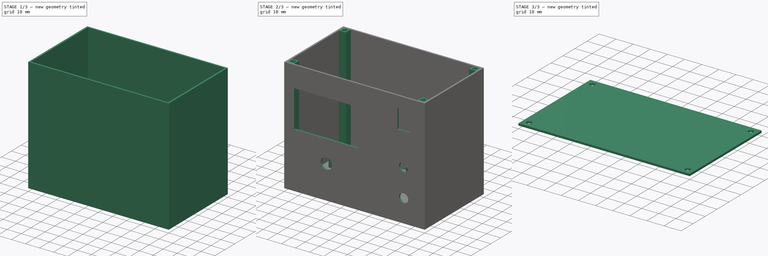
[diagram: build sequence overview — one tinted view per stage of 3, left to right]
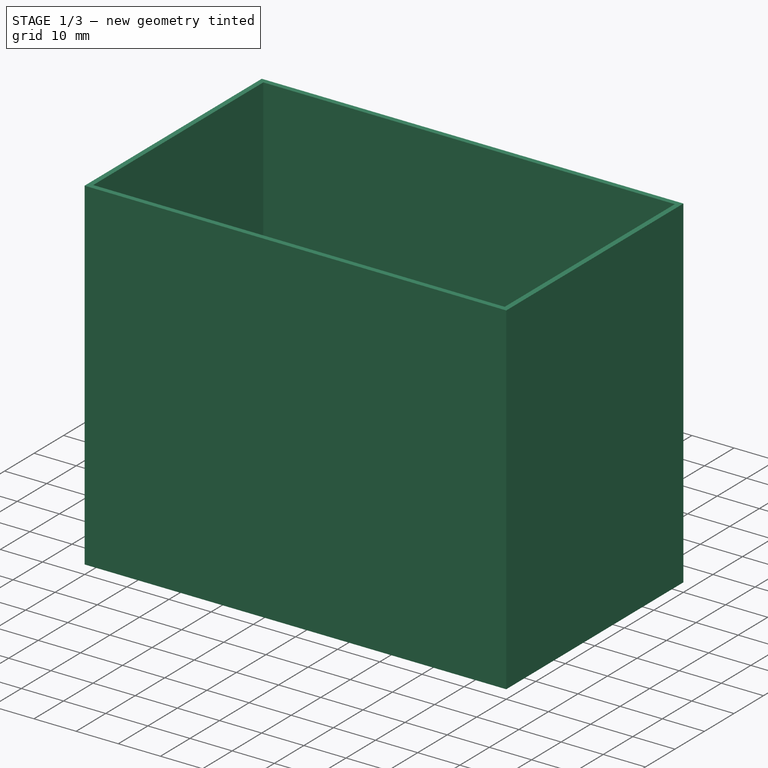
[diagram: stage 1 of 3 — iso view after this stage's code; geometry added in this stage tinted green]
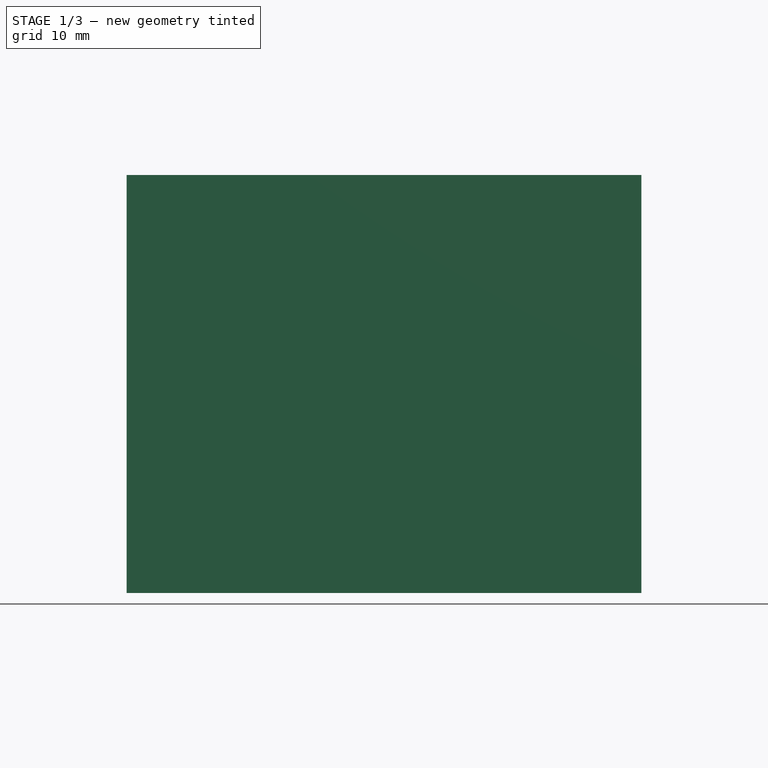
[diagram: stage 1 of 3 — front view after this stage's code; geometry added in this stage tinted green]
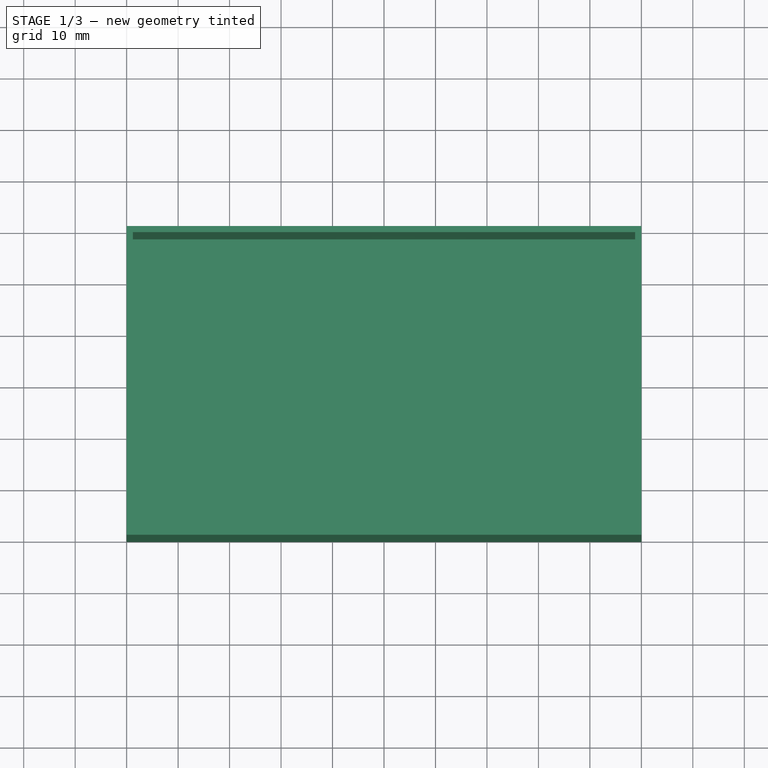
[diagram: stage 1 of 3 — top view after this stage's code; geometry added in this stage tinted green]
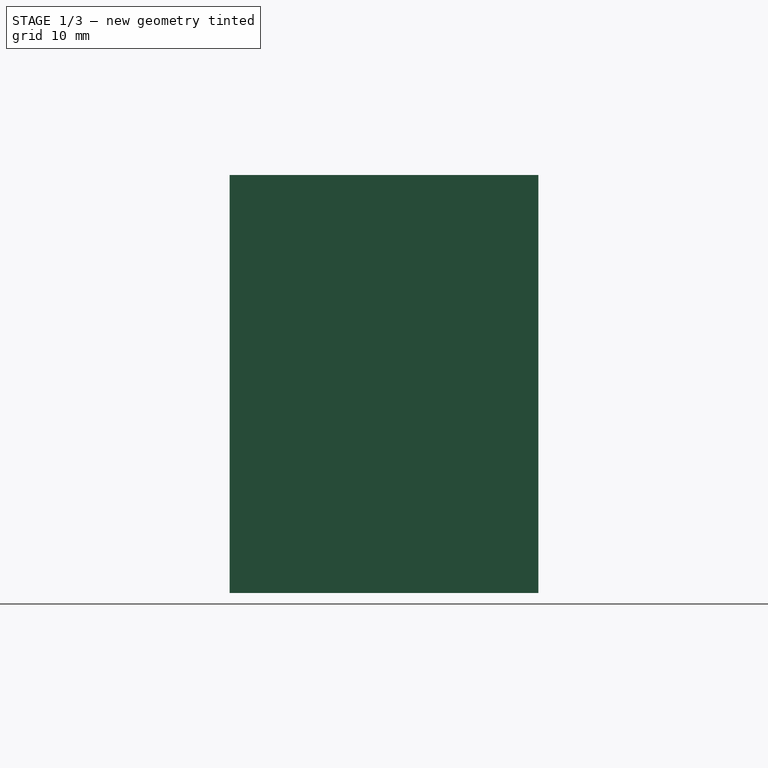
[diagram: stage 1 of 3 — right view after this stage's code; geometry added in this stage tinted green]
FCSTD DOCUMENT  (FreeCAD 0.18R16131 (Git))
Label: Box
License: CreativeCommons Attribution-NonCommercial-NoDerivatives
LicenseURL: http://creativecommons.org/licenses/by-nc-nd/4.0/
objects: Sketcher::SketchObject×9, PartDesign::Pad×5, PartDesign::Pocket×2, PartDesign::Body×2, PartDesign::ShapeBinder×1
note: 26 computed .brp shape members not serialized (recipe doc carries the construction recipe); baked Part::Feature solids carry a one-line shape summary decoded from their .brp

FEATURE [Sketcher::SketchObject] Sketch
  MapMode = 5
  Support = -> [XY_Plane]
  sketch-geometry (4):
    g0: LineSegment StartX=0 StartY=0 StartZ=0 EndX=100 EndY=0 EndZ=0
    g1: LineSegment StartX=100 StartY=0 StartZ=0 EndX=100 EndY=60 EndZ=0
    g2: LineSegment StartX=100 StartY=60 StartZ=0 EndX=0 EndY=60 EndZ=0
    g3: LineSegment StartX=0 StartY=60 StartZ=0 EndX=0 EndY=0 EndZ=0
  constraints (11):
    c: Coincident(g0,g1)
    c: Coincident(g1,g2)
    c: Coincident(g2,g3)
    c: Coincident(g3,g0)
    c: Horizontal(g0)
    c: Horizontal(g2)
    c: Vertical(g1)
    c: Vertical(g3)
    c: Coincident(g0,g-1)
    c: DistanceX(g2,g2) = 100
    c: DistanceY(g3,g3) = 60
FEATURE [PartDesign::Pad] Pad
  Length = 1.2
  Length2 = 100
  Profile = -> Sketch
  Type = 0
FEATURE [Sketcher::SketchObject] Sketch001
  ExternalGeometry = -> [Pad]
  MapMode = 5
  Placement = pos=(0,0,1.2) rot=(0,0,1;0rad)
  Support = -> [Pad]
  sketch-geometry (8):
    g0: LineSegment StartX=1.2 StartY=58.8 StartZ=0 EndX=98.8 EndY=58.8 EndZ=0
    g1: LineSegment StartX=98.8 StartY=58.8 StartZ=0 EndX=98.8 EndY=1.2 EndZ=0
    g2: LineSegment StartX=98.8 StartY=1.2 StartZ=0 EndX=1.2 EndY=1.2 EndZ=0
    g3: LineSegment StartX=1.2 StartY=1.2 StartZ=0 EndX=1.2 EndY=58.8 EndZ=0
    g4: LineSegment StartX=0 StartY=60 StartZ=0 EndX=100 EndY=60 EndZ=0
    g5: LineSegment StartX=100 StartY=60 StartZ=0 EndX=100 EndY=0 EndZ=0
    g6: LineSegment StartX=100 StartY=0 StartZ=0 EndX=0 EndY=0 EndZ=0
    g7: LineSegment StartX=0 StartY=0 StartZ=0 EndX=0 EndY=60 EndZ=0
  constraints (22):
    c: Coincident(g0,g1)
    c: Coincident(g1,g2)
    c: Coincident(g2,g3)
    c: Coincident(g3,g0)
    c: Horizontal(g0)
    c: Horizontal(g2)
    c: Vertical(g1)
    c: Vertical(g3)
    c: DistanceX(g-3,g0) = 1.2
    c: DistanceX(g1,g-4) = 1.2
    c: DistanceY(g-1,g2) = 1.2
    c: DistanceY(g0,g-3) = 1.2
    c: Coincident(g4,g5)
    c: Coincident(g5,g6)
    c: Coincident(g6,g7)
    c: Coincident(g7,g4)
    c: Horizontal(g4)
    c: Horizontal(g6)
    c: Vertical(g5)
    c: Vertical(g7)
    c: Coincident(g4,g-3)
    c: Coincident(g5,g-4)
FEATURE [PartDesign::Pad] Pad001
  BaseFeature = -> Pad
  Length = 80
  Length2 = 100
  Profile = -> Sketch001
  Type = 0
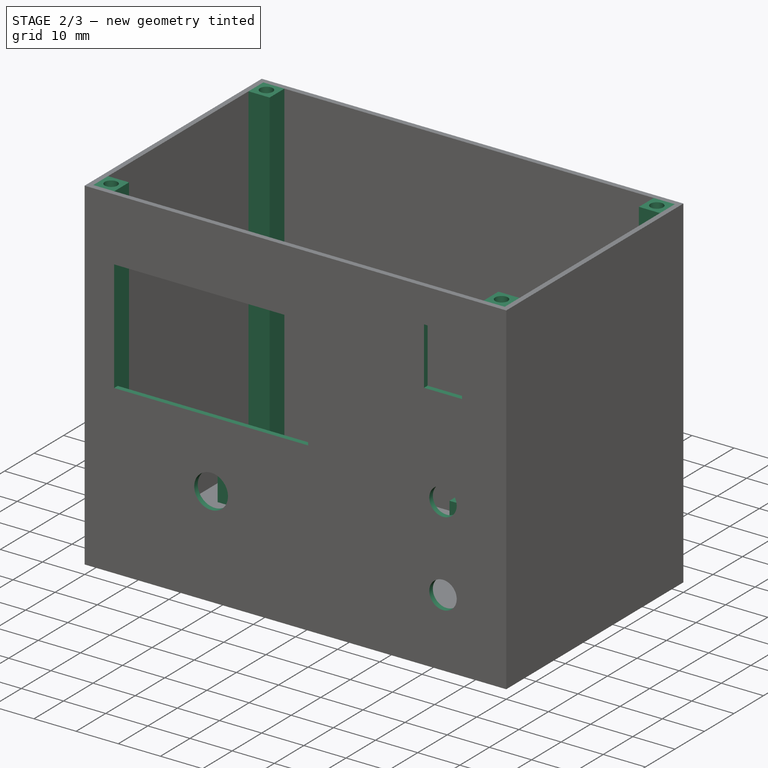
[diagram: stage 2 of 3 — iso view after this stage's code; geometry added in this stage tinted green]
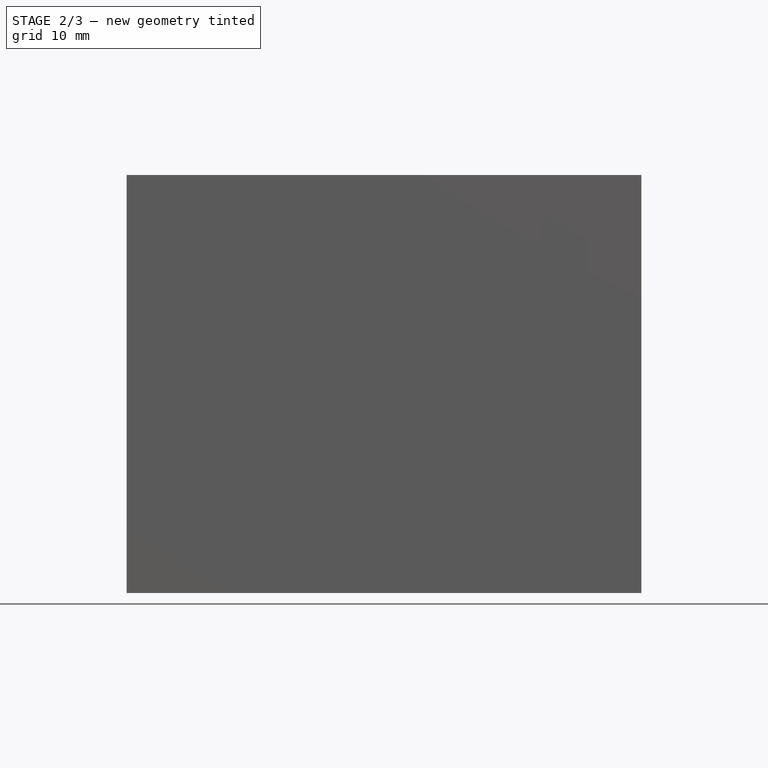
[diagram: stage 2 of 3 — front view after this stage's code; geometry added in this stage tinted green]
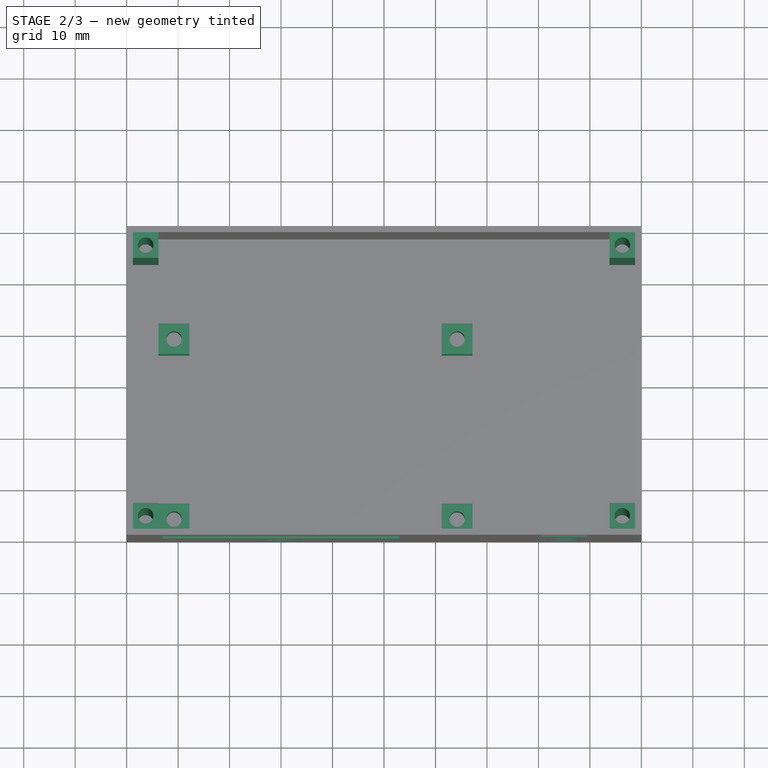
[diagram: stage 2 of 3 — top view after this stage's code; geometry added in this stage tinted green]
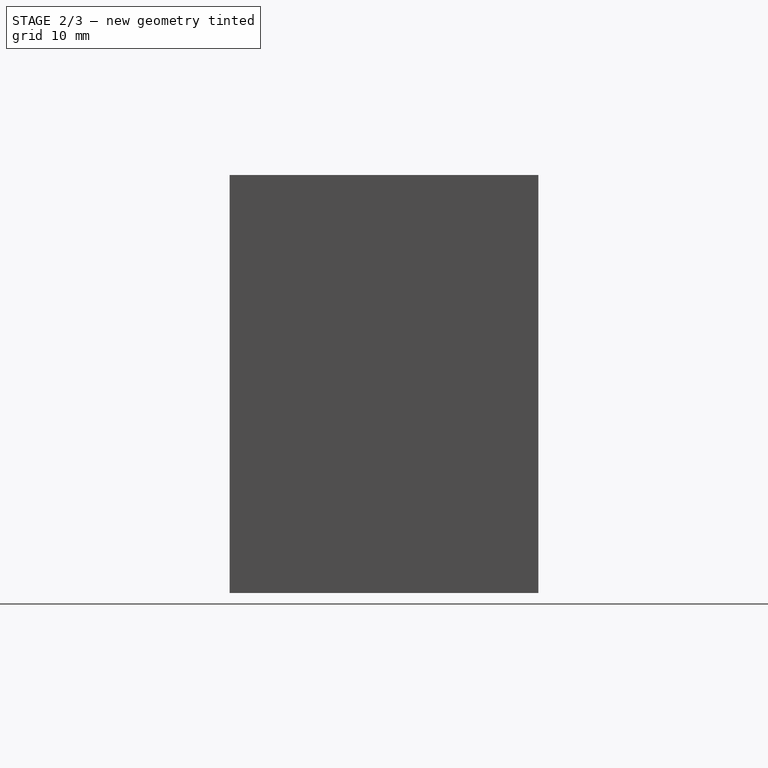
[diagram: stage 2 of 3 — right view after this stage's code; geometry added in this stage tinted green]
FEATURE [Sketcher::SketchObject] Sketch002
  MapMode = 5
  Placement = pos=(0,0,0) rot=(1,0,0;1.5708rad)
  Support = -> [Pad001]
FEATURE [Sketcher::SketchObject] Sketch003
  ExternalGeometry = -> [Pad001]
  MapMode = 5
  Placement = pos=(0,0,1.2) rot=(0,0,1;0rad)
  Support = -> [Pad001]
  sketch-geometry (20):
    g0: LineSegment StartX=1.2 StartY=58.8 StartZ=0 EndX=6.2 EndY=58.8 EndZ=0
    g1: LineSegment StartX=6.2 StartY=58.8 StartZ=0 EndX=6.2 EndY=53.8 EndZ=0
    g2: LineSegment StartX=6.2 StartY=53.8 StartZ=0 EndX=1.2 EndY=53.8 EndZ=0
    g3: LineSegment StartX=1.2 StartY=53.8 StartZ=0 EndX=1.2 EndY=58.8 EndZ=0
    g4: LineSegment StartX=98.8 StartY=58.8 StartZ=0 EndX=93.8 EndY=58.8 EndZ=0
    g5: LineSegment StartX=93.8 StartY=58.8 StartZ=0 EndX=93.8 EndY=53.8 EndZ=0
    g6: LineSegment StartX=93.8 StartY=53.8 StartZ=0 EndX=98.8 EndY=53.8 EndZ=0
    g7: LineSegment StartX=98.8 StartY=53.8 StartZ=0 EndX=98.8 EndY=58.8 EndZ=0
    g8: LineSegment StartX=98.8 StartY=1.2 StartZ=0 EndX=93.8 EndY=1.2 EndZ=0
    g9: LineSegment StartX=93.8 StartY=1.2 StartZ=0 EndX=93.8 EndY=6.2 EndZ=0
    g10: LineSegment StartX=93.8 StartY=6.2 StartZ=0 EndX=98.8 EndY=6.2 EndZ=0
    g11: LineSegment StartX=98.8 StartY=6.2 StartZ=0 EndX=98.8 EndY=1.2 EndZ=0
    g12: LineSegment StartX=1.2 StartY=1.2 StartZ=0 EndX=6.2 EndY=1.2 EndZ=0
    g13: LineSegment StartX=6.2 StartY=1.2 StartZ=0 EndX=6.2 EndY=6.2 EndZ=0
    g14: LineSegment StartX=6.2 StartY=6.2 StartZ=0 EndX=1.2 EndY=6.2 EndZ=0
    g15: LineSegment StartX=1.2 StartY=6.2 StartZ=0 EndX=1.2 EndY=1.2 EndZ=0
    g16: Circle CenterX=3.7 CenterY=56.3 CenterZ=0 NormalX=0 NormalY=0 NormalZ=1 AngleXU=0 Radius=1.5
    g17: Circle CenterX=96.3 CenterY=56.3 CenterZ=0 NormalX=0 NormalY=0 NormalZ=1 AngleXU=0 Radius=1.5
    g18: Circle CenterX=96.3 CenterY=3.7 CenterZ=0 NormalX=0 NormalY=0 NormalZ=1 AngleXU=0 Radius=1.5
    g19: Circle CenterX=3.7 CenterY=3.7 CenterZ=0 NormalX=0 NormalY=0 NormalZ=1 AngleXU=0 Radius=1.5
  constraints (56):
    c: Coincident(g0,g1)
    c: Coincident(g1,g2)
    c: Coincident(g2,g3)
    c: Coincident(g3,g0)
    c: Horizontal(g0)
    c: Horizontal(g2)
    c: Vertical(g1)
    c: Vertical(g3)
    c: Coincident(g0,g-3)
    c: Coincident(g4,g5)
    c: Coincident(g5,g6)
    c: Coincident(g6,g7)
    c: Coincident(g7,g4)
    c: Horizontal(g4)
    c: Horizontal(g6)
    c: Vertical(g5)
    c: Vertical(g7)
    c: Coincident(g4,g-3)
    c: Coincident(g8,g9)
    c: Coincident(g9,g10)
    c: Coincident(g10,g11)
    c: Coincident(g11,g8)
    c: Horizontal(g8)
    c: Horizontal(g10)
    c: Vertical(g9)
    c: Vertical(g11)
    c: Coincident(g8,g-4)
    c: Coincident(g12,g13)
    c: Coincident(g13,g14)
    c: Coincident(g14,g15)
    c: Coincident(g15,g12)
    c: Horizontal(g12)
    c: Horizontal(g14)
    c: Vertical(g13)
    c: Vertical(g15)
    c: Coincident(g12,g-4)
    c: DistanceX(g2,g2) = 5
    c: DistanceY(g3,g3) = 5
    c: Equal(g0,g4)
    c: Equal(g4,g10)
    c: Equal(g10,g14)
    c: Equal(g3,g15)
    c: Equal(g15,g9)
    c: Equal(g9,g5)
    c: Radius(g16) = 1.5
    c: DistanceX(g0,g16) = 2.5
    c: DistanceY(g2,g16) = 2.5
    c: Radius(g17) = 1.5
    c: Radius(g18) = 1.5
    c: Radius(g19) = 1.5
    c: DistanceX(g17,g4) = 2.5
    c: DistanceY(g17,g4) = 2.5
    c: DistanceX(g18,g10) = 2.5
    c: DistanceY(g8,g18) = 2.5
    c: DistanceX(g12,g19) = 2.5
    c: DistanceY(g12,g19) = 2.5
FEATURE [PartDesign::Pad] Pad002
  BaseFeature = -> Pad001
  Length = 80
  Length2 = 100
  Profile = -> Sketch003
  Type = 0
FEATURE [Sketcher::SketchObject] Sketch004
  ExternalGeometry = -> [Pad002]
  MapMode = 5
  Placement = pos=(0,0,1.2) rot=(0,0,1;0rad)
  Support = -> [Pad002]
  sketch-geometry (20):
    g0: LineSegment StartX=6.2 StartY=1.2 StartZ=0 EndX=12.2 EndY=1.2 EndZ=0
    g1: LineSegment StartX=12.2 StartY=1.2 StartZ=0 EndX=12.2 EndY=7.2 EndZ=0
    g2: LineSegment StartX=12.2 StartY=7.2 StartZ=0 EndX=6.2 EndY=7.2 EndZ=0
    g3: LineSegment StartX=6.2 StartY=7.2 StartZ=0 EndX=6.2 EndY=1.2 EndZ=0
    g4: LineSegment StartX=61.2 StartY=7.2 StartZ=0 EndX=67.2 EndY=7.2 EndZ=0
    g5: LineSegment StartX=67.2 StartY=7.2 StartZ=0 EndX=67.2 EndY=1.2 EndZ=0
    g6: LineSegment StartX=67.2 StartY=1.2 StartZ=0 EndX=61.2 EndY=1.2 EndZ=0
    g7: LineSegment StartX=61.2 StartY=1.2 StartZ=0 EndX=61.2 EndY=7.2 EndZ=0
    g8: LineSegment StartX=6.2 StartY=42.2 StartZ=0 EndX=12.2 EndY=42.2 EndZ=0
    g9: LineSegment StartX=12.2 StartY=42.2 StartZ=0 EndX=12.2 EndY=36.2 EndZ=0
    g10: LineSegment StartX=12.2 StartY=36.2 StartZ=0 EndX=6.2 EndY=36.2 EndZ=0
    g11: LineSegment StartX=6.2 StartY=36.2 StartZ=0 EndX=6.2 EndY=42.2 EndZ=0
    g12: LineSegment StartX=61.2 StartY=42.2 StartZ=0 EndX=67.2 EndY=42.2 EndZ=0
    g13: LineSegment StartX=67.2 StartY=42.2 StartZ=0 EndX=67.2 EndY=36.2 EndZ=0
    g14: LineSegment StartX=67.2 StartY=36.2 StartZ=0 EndX=61.2 EndY=36.2 EndZ=0
    g15: LineSegment StartX=61.2 StartY=36.2 StartZ=0 EndX=61.2 EndY=42.2 EndZ=0
    g16: Circle CenterX=9.2 CenterY=39.2 CenterZ=0 NormalX=0 NormalY=0 NormalZ=1 AngleXU=0 Radius=1.5
    g17: Circle CenterX=64.2 CenterY=39.2 CenterZ=0 NormalX=0 NormalY=0 NormalZ=1 AngleXU=0 Radius=1.5
    g18: Circle CenterX=64.2 CenterY=4.2 CenterZ=0 NormalX=0 NormalY=0 NormalZ=1 AngleXU=0 Radius=1.5
    g19: Circle CenterX=9.2 CenterY=4.2 CenterZ=0 NormalX=0 NormalY=0 NormalZ=1 AngleXU=0 Radius=1.5
  constraints (55):
    c: Coincident(g0,g1)
    c: Coincident(g1,g2)
    c: Coincident(g2,g3)
    c: Coincident(g3,g0)
    c: Horizontal(g0)
    c: Horizontal(g2)
    c: Vertical(g1)
    c: Vertical(g3)
    c: Coincident(g0,g-9)
    c: DistanceX(g2,g2) = 6
    c: DistanceY(g1,g1) = 6
    c: Coincident(g4,g5)
    c: Coincident(g5,g6)
    c: Coincident(g6,g7)
    c: Coincident(g7,g4)
    c: Horizontal(g4)
    c: Horizontal(g6)
    c: Vertical(g5)
    c: Vertical(g7)
    c: DistanceX(g0,g5) = 61
    c: Equal(g0,g6)
    c: Equal(g1,g7)
    c: DistanceY(g0,g6) = 0
    c: Coincident(g8,g9)
    c: Coincident(g9,g10)
    c: Coincident(g10,g11)
    c: Coincident(g11,g8)
    c: Horizontal(g8)
    c: Horizontal(g10)
    c: Vertical(g9)
    c: Vertical(g11)
    c: Equal(g2,g10)
    c: Equal(g1,g9)
    c: DistanceX(g10,g2) = 0
    c: DistanceY(g0,g8) = 41
    c: Coincident(g12,g13)
    c: Coincident(g13,g14)
    c: Coincident(g14,g15)
    c: Coincident(g15,g12)
    c: Horizontal(g12)
    c: Horizontal(g14)
    c: Vertical(g13)
    c: Vertical(g15)
    c: Equal(g1,g15)
    c: Equal(g0,g14)
    c: DistanceY(g5,g12) = 41
    c: DistanceX(g8,g12) = 61
    c: Radius(g16) = 1.5
    c: Equal(g16,g17)
    c: Equal(g16,g19)
    c: Equal(g16,g18)
    c: Symmetric(g8,g9,g16)
    c: Symmetric(g14,g12,g17)
    c: Symmetric(g4,g5,g18)
    c: Symmetric(g2,g0,g19)
FEATURE [PartDesign::Pad] Pad003
  BaseFeature = -> Pad002
  Length = 15
  Length2 = 100
  Profile = -> Sketch004
  Type = 0
FEATURE [Sketcher::SketchObject] Sketch005
  ExternalGeometry = -> [Pad003]
  MapMode = 5
  Placement = pos=(0,0,0) rot=(1,0,0;1.5708rad)
  Support = -> [Pad003]
  sketch-geometry (11):
    g0: Circle CenterX=30 CenterY=23.7 CenterZ=0 NormalX=0 NormalY=0 NormalZ=1 AngleXU=0 Radius=4
    g1: LineSegment StartX=7 StartY=39.7 StartZ=0 EndX=53 EndY=39.7 EndZ=0
    g2: LineSegment StartX=53 StartY=39.7 StartZ=0 EndX=53 EndY=66.2 EndZ=0
    g3: LineSegment StartX=53 StartY=66.2 StartZ=0 EndX=7 EndY=66.2 EndZ=0
    g4: LineSegment StartX=7 StartY=66.2 StartZ=0 EndX=7 EndY=39.7 EndZ=0
    g5: Circle CenterX=85 CenterY=16.2 CenterZ=0 NormalX=0 NormalY=0 NormalZ=1 AngleXU=0 Radius=3.25
    g6: Circle CenterX=85 CenterY=36.2 CenterZ=0 NormalX=0 NormalY=0 NormalZ=1 AngleXU=0 Radius=3.25
    g7: LineSegment StartX=80.5 StartY=73 StartZ=0 EndX=89.5 EndY=73 EndZ=0
    g8: LineSegment StartX=89.5 StartY=73 StartZ=0 EndX=89.5 EndY=59.4 EndZ=0
    g9: LineSegment StartX=89.5 StartY=59.4 StartZ=0 EndX=80.5 EndY=59.4 EndZ=0
    g10: LineSegment StartX=80.5 StartY=59.4 StartZ=0 EndX=80.5 EndY=73 EndZ=0
  constraints (33):
    c: Radius(g0) = 4
    c: DistanceX(g-5,g0) = 30
    c: DistanceY(g-5,g0) = 22.5
    c: Coincident(g1,g2)
    c: Coincident(g2,g3)
    c: Coincident(g3,g4)
    c: Coincident(g4,g1)
    c: Horizontal(g1)
    c: Horizontal(g3)
    c: Vertical(g2)
    c: Vertical(g4)
    c: DistanceX(g3,g3) = 46
    c: DistanceY(g4,g4) = 26.5
    c: DistanceX(g1,g0) = 23
    c: DistanceY(g0,g1) = 16
    c: Radius(g5) = 3.25
    c: Equal(g5,g6)
    c: DistanceX(g5,g-5) = 15
    c: DistanceX(g6,g-5) = 15
    c: DistanceY(g-5,g5) = 15
    c: DistanceY(g5,g6) = 20
    c: Coincident(g7,g8)
    c: Coincident(g8,g9)
    c: Coincident(g9,g10)
    c: Coincident(g10,g7)
    c: Horizontal(g7)
    c: Horizontal(g9)
    c: Vertical(g8)
    c: Vertical(g10)
    c: DistanceX(g7,g7) = 9
    c: DistanceY(g10,g10) = 13.6
    c: DistanceX(g7,g-4) = 10.5
    c: DistanceY(g9,g2) = 6.8
FEATURE [PartDesign::Pocket] Pocket
  BaseFeature = -> Pad003
  Length = 5
  Length2 = 100
  Profile = -> Sketch005
  Type = 0
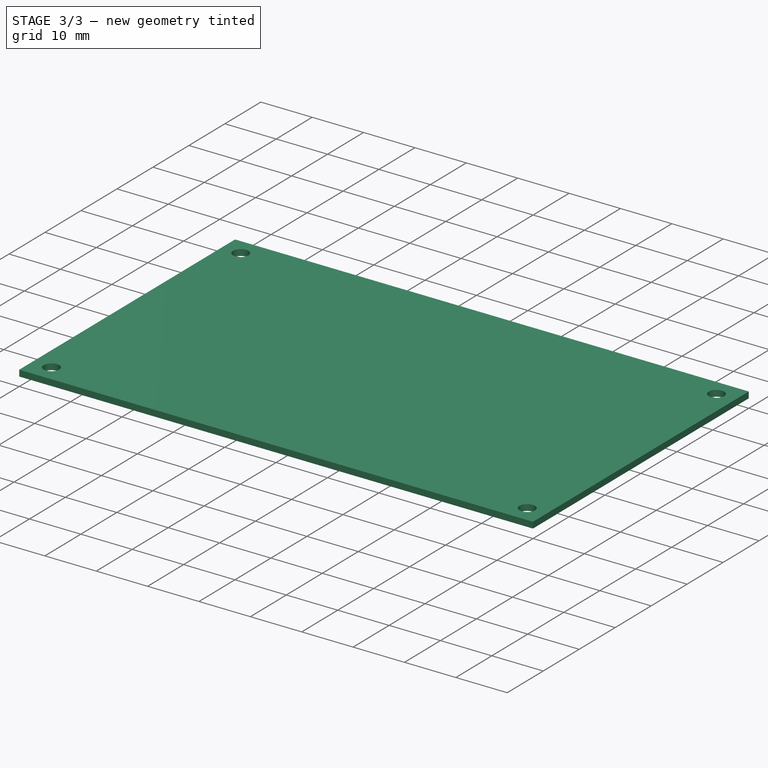
[diagram: stage 3 of 3 — iso view after this stage's code; geometry added in this stage tinted green]
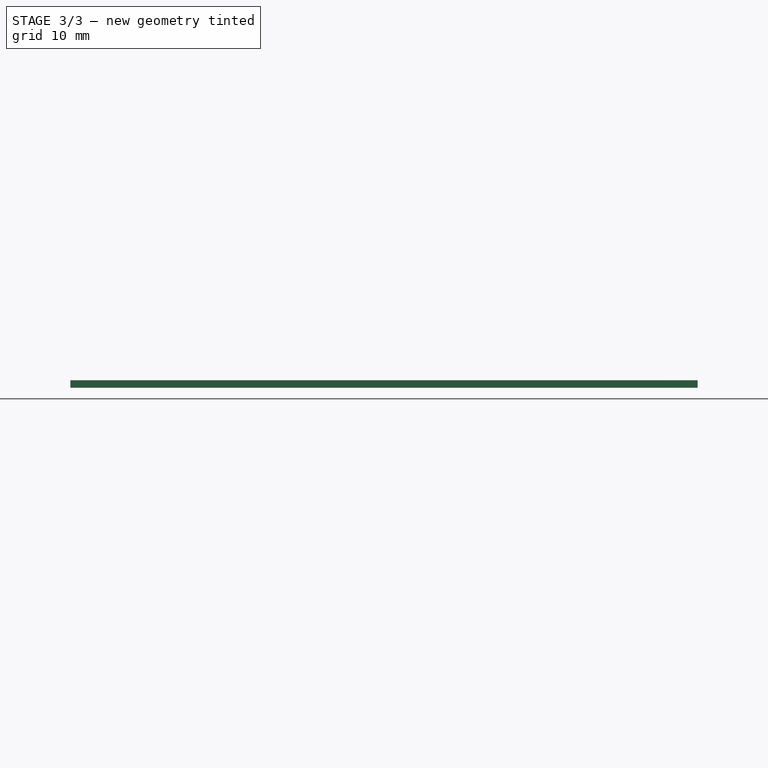
[diagram: stage 3 of 3 — front view after this stage's code; geometry added in this stage tinted green]
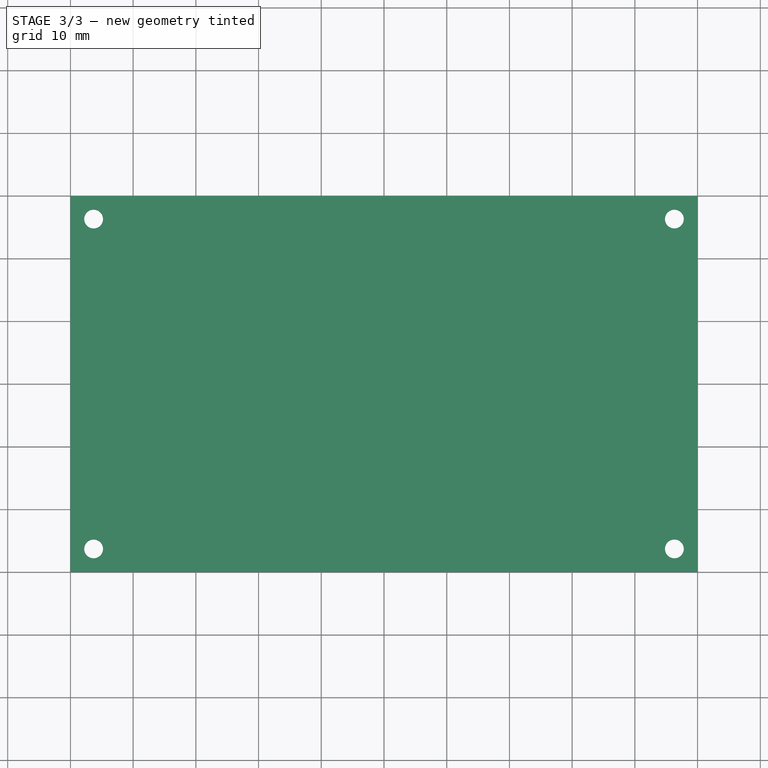
[diagram: stage 3 of 3 — top view after this stage's code; geometry added in this stage tinted green]
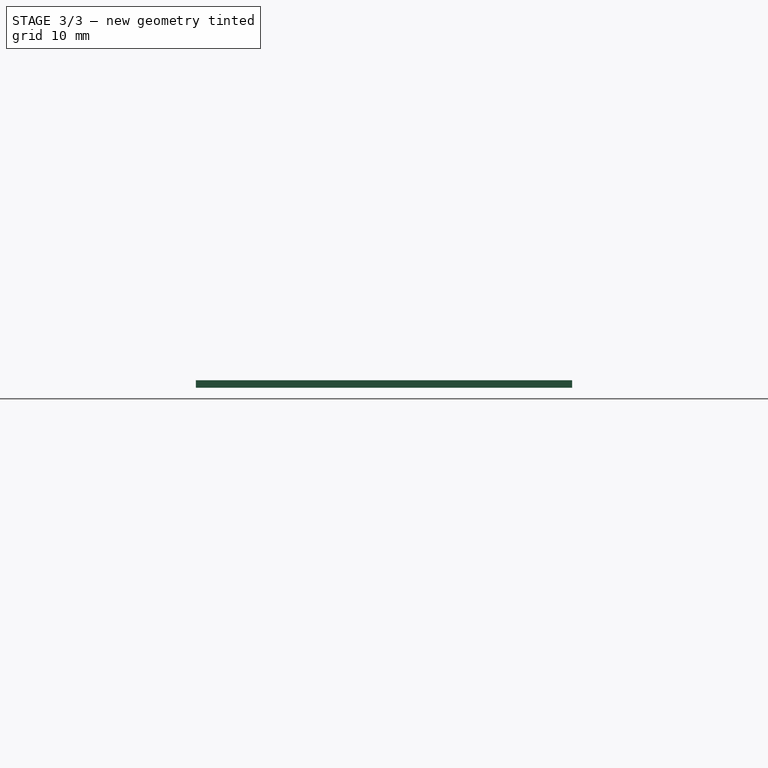
[diagram: stage 3 of 3 — right view after this stage's code; geometry added in this stage tinted green]
FEATURE [Sketcher::SketchObject] Sketch006
  MapMode = 5
  Placement = pos=(0,60,0) rot=(0,0.707107,0.707107;3.14159rad)
  Support = -> [Pocket]
FEATURE [Sketcher::SketchObject] Sketch007
  ExternalGeometry = -> [Pocket]
  MapMode = 5
  Placement = pos=(0,60,0) rot=(0,0.707107,0.707107;3.14159rad)
  Support = -> [Pocket]
  sketch-geometry (29):
    g0: Circle CenterX=-82 CenterY=16.2 CenterZ=0 NormalX=0 NormalY=0 NormalZ=1 AngleXU=0 Radius=6.25
    g1: LineSegment StartX=-5 StartY=16.2 StartZ=0 EndX=-10 EndY=16.2 EndZ=0
    g2: LineSegment StartX=-10 StartY=16.2 StartZ=0 EndX=-10 EndY=76.2 EndZ=0
    g3: LineSegment StartX=-10 StartY=76.2 StartZ=0 EndX=-5 EndY=76.2 EndZ=0
    g4: LineSegment StartX=-5 StartY=76.2 StartZ=0 EndX=-5 EndY=16.2 EndZ=0
    g5: LineSegment StartX=-15 StartY=76.2 StartZ=0 EndX=-20 EndY=76.2 EndZ=0
    g6: LineSegment StartX=-20 StartY=76.2 StartZ=0 EndX=-20 EndY=16.2 EndZ=0
    g7: LineSegment StartX=-20 StartY=16.2 StartZ=0 EndX=-15 EndY=16.2 EndZ=0
    g8: LineSegment StartX=-15 StartY=16.2 StartZ=0 EndX=-15 EndY=76.2 EndZ=0
    g9: LineSegment StartX=-30 StartY=76.2 StartZ=0 EndX=-25 EndY=76.2 EndZ=0
    g10: LineSegment StartX=-25 StartY=76.2 StartZ=0 EndX=-25 EndY=16.1778 EndZ=0
    g11: LineSegment StartX=-25 StartY=16.1778 StartZ=0 EndX=-30 EndY=16.1778 EndZ=0
    g12: LineSegment StartX=-30 StartY=16.1778 StartZ=0 EndX=-30 EndY=76.2 EndZ=0
    g13: LineSegment StartX=-40 StartY=76.2 StartZ=0 EndX=-35 EndY=76.2 EndZ=0
    g14: LineSegment StartX=-35 StartY=76.2 StartZ=0 EndX=-35 EndY=16.1778 EndZ=0
    g15: LineSegment StartX=-35 StartY=16.1778 StartZ=0 EndX=-40 EndY=16.1778 EndZ=0
    g16: LineSegment StartX=-40 StartY=16.1778 StartZ=0 EndX=-40 EndY=76.2 EndZ=0
    g17: LineSegment StartX=-50 StartY=76.2 StartZ=0 EndX=-45 EndY=76.2 EndZ=0
    g18: LineSegment StartX=-45 StartY=76.2 StartZ=0 EndX=-45 EndY=16.1778 EndZ=0
    g19: LineSegment StartX=-45 StartY=16.1778 StartZ=0 EndX=-50 EndY=16.1778 EndZ=0
    g20: LineSegment StartX=-50 StartY=16.1778 StartZ=0 EndX=-50 EndY=76.2 EndZ=0
    g21: LineSegment StartX=-60 StartY=76.2 StartZ=0 EndX=-55 EndY=76.2 EndZ=0
    g22: LineSegment StartX=-55 StartY=76.2 StartZ=0 EndX=-55 EndY=16.1778 EndZ=0
    g23: LineSegment StartX=-55 StartY=16.1778 StartZ=0 EndX=-60 EndY=16.1778 EndZ=0
    g24: LineSegment StartX=-60 StartY=16.1778 StartZ=0 EndX=-60 EndY=76.2 EndZ=0
    g25: LineSegment StartX=-70 StartY=76.2 StartZ=0 EndX=-65 EndY=76.2 EndZ=0
    g26: LineSegment StartX=-65 StartY=76.2 StartZ=0 EndX=-65 EndY=16.1778 EndZ=0
    g27: LineSegment StartX=-65 StartY=16.1778 StartZ=0 EndX=-70 EndY=16.1778 EndZ=0
    g28: LineSegment StartX=-70 StartY=16.1778 StartZ=0 EndX=-70 EndY=76.2 EndZ=0
  constraints (86):
    c: Radius(g0) = 6.25
    c: DistanceX(g-4,g0) = 18
    c: DistanceY(g-4,g0) = 15
    c: Coincident(g1,g2)
    c: Coincident(g2,g3)
    c: Coincident(g3,g4)
    c: Coincident(g4,g1)
    c: Horizontal(g1)
    c: Horizontal(g3)
    c: Vertical(g2)
    c: Vertical(g4)
    c: DistanceX(g3,g3) = 5
    c: DistanceY(g2,g2) = 60
    c: DistanceY(g-5,g1) = 15
    c: DistanceX(g1,g-5) = 5
    c: Coincident(g5,g6)
    c: Coincident(g6,g7)
    c: Coincident(g7,g8)
    c: Coincident(g8,g5)
    c: Horizontal(g5)
    c: Horizontal(g7)
    c: Vertical(g6)
    c: Vertical(g8)
    c: Coincident(g9,g10)
    c: Coincident(g10,g11)
    c: Coincident(g11,g12)
    c: Coincident(g12,g9)
    c: Horizontal(g9)
    c: Horizontal(g11)
    c: Vertical(g10)
    c: Vertical(g12)
    c: Coincident(g13,g14)
    c: Coincident(g14,g15)
    c: Coincident(g15,g16)
    c: Coincident(g16,g13)
    c: Horizontal(g13)
    c: Horizontal(g15)
    c: Vertical(g14)
    c: Vertical(g16)
    c: Coincident(g17,g18)
    c: Coincident(g18,g19)
    c: Coincident(g19,g20)
    c: Coincident(g20,g17)
    c: Horizontal(g17)
    c: Horizontal(g19)
    c: Vertical(g18)
    c: Vertical(g20)
    c: Equal(g3,g5)
    c: Equal(g5,g9)
    c: Equal(g9,g13)
    c: Equal(g13,g17)
    c: Equal(g2,g8)
    c: Equal(g12,g14)
    c: Equal(g16,g18)
    c: DistanceX(g5,g2) = 5
    c: DistanceX(g9,g5) = 5
    c: DistanceX(g13,g9) = 5
    c: DistanceX(g17,g13) = 5
    c: DistanceY(g5,g2) = 0
    c: DistanceY(g9,g5) = 0
    c: DistanceY(g13,g9) = 0
    c: DistanceY(g17,g13) = 0
    c: Coincident(g21,g22)
    c: Coincident(g22,g23)
    c: Coincident(g23,g24)
    c: Coincident(g24,g21)
    c: Horizontal(g21)
    c: Horizontal(g23)
    c: Vertical(g22)
    c: Vertical(g24)
    c: Coincident(g25,g26)
    c: Coincident(g26,g27)
    c: Coincident(g27,g28)
    c: Coincident(g28,g25)
    c: Horizontal(g25)
    c: Horizontal(g27)
    c: Vertical(g26)
    c: Vertical(g28)
    c: Equal(g17,g21)
    c: Equal(g21,g25)
    c: Equal(g20,g22)
    c: Equal(g24,g26)
    c: DistanceX(g21,g17) = 5
    c: DistanceY(g21,g17) = 0
    c: DistanceY(g21,g25) = 0
    c: DistanceX(g25,g21) = 5
FEATURE [PartDesign::Pocket] Pocket001
  BaseFeature = -> Pocket
  Length = 5
  Length2 = 100
  Profile = -> Sketch007
  Type = 0
FEATURE [PartDesign::Body] Body
  Group = -> [Sketch,Pad,Sketch001,Pad001,Sketch002,Sketch003,Pad002,Sketch004,Pad003,Sketch005,Pocket,Sketch006,Sketch007,Pocket001]
  Origin = -> Origin
  Tip = -> Pocket001
FEATURE [PartDesign::ShapeBinder] ShapeBinder
  Support = -> [Pocket001]
  TraceSupport = false
FEATURE [Sketcher::SketchObject] Sketch008
  ExternalGeometry = -> [ShapeBinder]
  MapMode = 5
  Placement = pos=(0,0,81.2) rot=(0,0,1;0rad)
  Support = -> [ShapeBinder]
  sketch-geometry (8):
    g0: LineSegment StartX=0 StartY=60 StartZ=0 EndX=100 EndY=60 EndZ=0
    g1: LineSegment StartX=100 StartY=60 StartZ=0 EndX=100 EndY=0 EndZ=0
    g2: LineSegment StartX=100 StartY=0 StartZ=0 EndX=0 EndY=0 EndZ=0
    g3: LineSegment StartX=0 StartY=0 StartZ=0 EndX=0 EndY=60 EndZ=0
    g4: Circle CenterX=3.7 CenterY=56.3 CenterZ=0 NormalX=0 NormalY=0 NormalZ=1 AngleXU=0 Radius=1.5
    g5: Circle CenterX=96.3 CenterY=56.3 CenterZ=0 NormalX=0 NormalY=0 NormalZ=1 AngleXU=0 Radius=1.5
    g6: Circle CenterX=96.3 CenterY=3.7 CenterZ=0 NormalX=0 NormalY=0 NormalZ=1 AngleXU=0 Radius=1.5
    g7: Circle CenterX=3.7 CenterY=3.7 CenterZ=0 NormalX=0 NormalY=0 NormalZ=1 AngleXU=0 Radius=1.5
  constraints (22):
    c: Coincident(g0,g1)
    c: Coincident(g1,g2)
    c: Coincident(g2,g3)
    c: Coincident(g3,g0)
    c: Horizontal(g0)
    c: Horizontal(g2)
    c: Vertical(g1)
    c: Vertical(g3)
    c: Coincident(g0,g-4)
    c: Coincident(g1,g-3)
    c: Radius(g4) = 1.5
    c: Equal(g4,g5)
    c: Equal(g5,g6)
    c: Equal(g6,g7)
    c: DistanceX(g0,g4) = 3.7
    c: DistanceX(g2,g7) = 3.7
    c: DistanceX(g6,g1) = 3.7
    c: DistanceX(g5,g0) = 3.7
    c: DistanceY(g4,g0) = 3.7
    c: DistanceY(g2,g7) = 3.7
    c: DistanceY(g5,g0) = 3.7
    c: DistanceY(g1,g6) = 3.7
FEATURE [PartDesign::Pad] Pad004
  Length = 1.2
  Length2 = 100
  Profile = -> Sketch008
  Type = 0
FEATURE [PartDesign::Body] Body001
  Group = -> [ShapeBinder,Sketch008,Pad004]
  Origin = -> Origin001
  Placement = pos=(0,0,20) rot=(0,0,1;0rad)
  Tip = -> Pad004
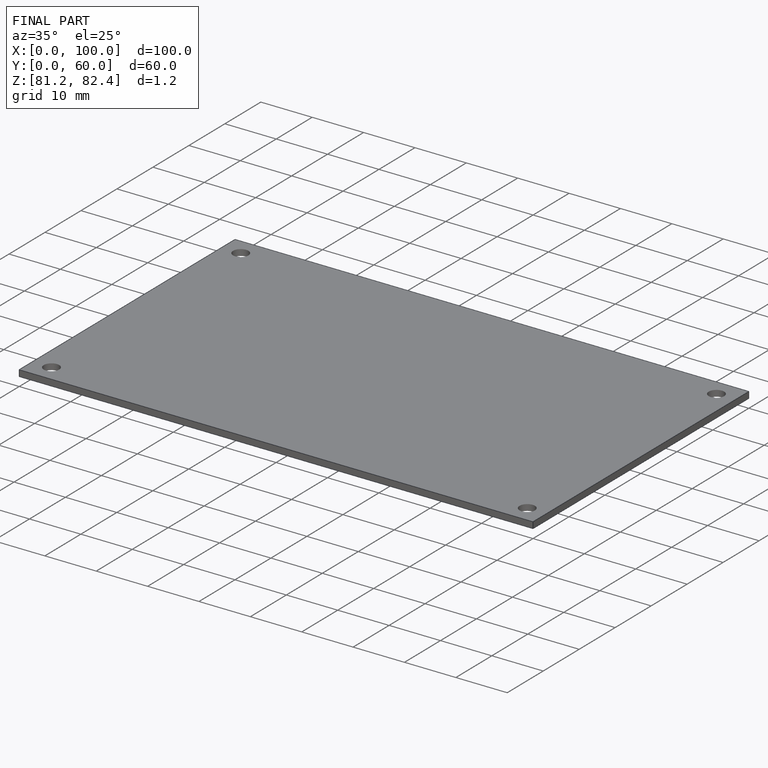
[diagram: finished part — iso view with bounding-box wireframe]
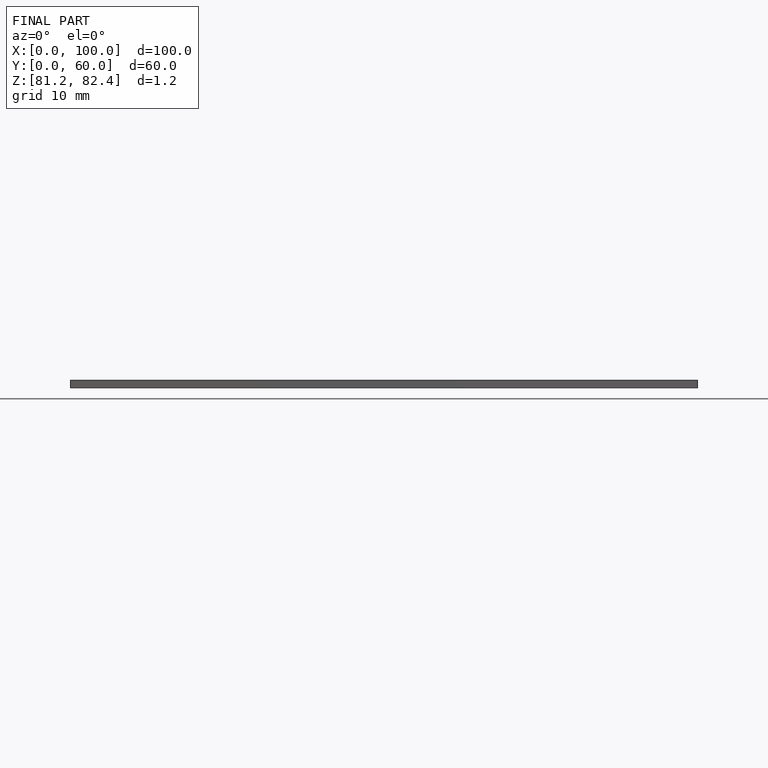
[diagram: finished part — front view with bounding-box wireframe]
